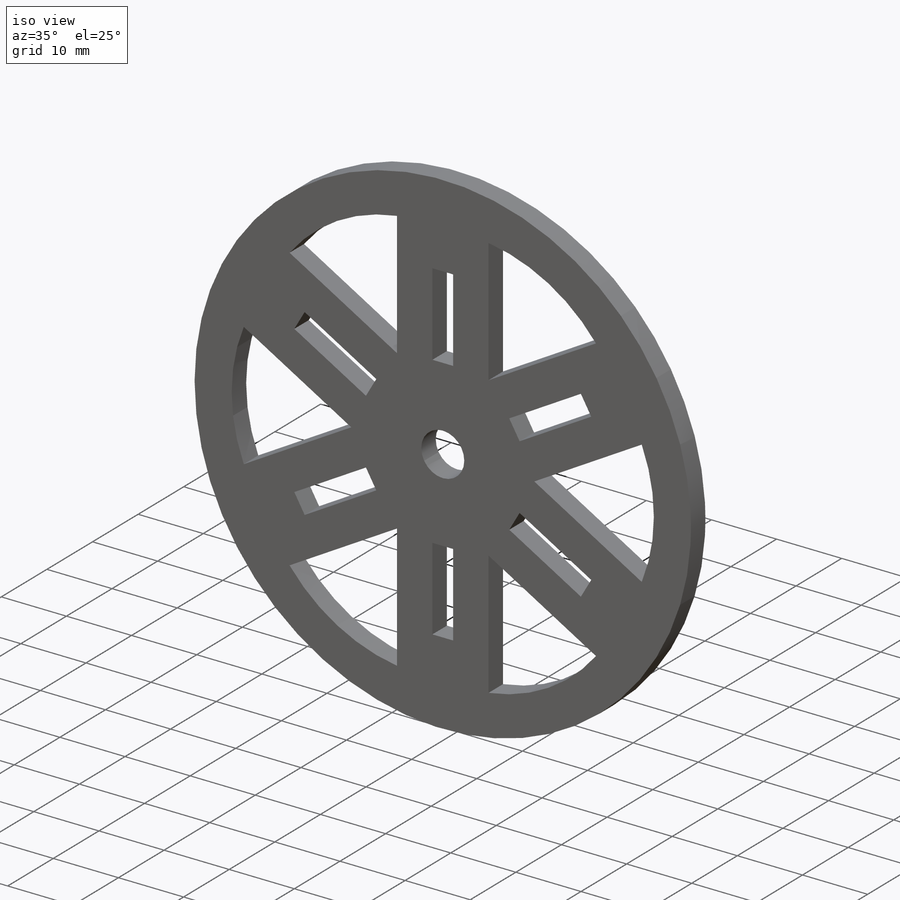
[diagram: iso view]
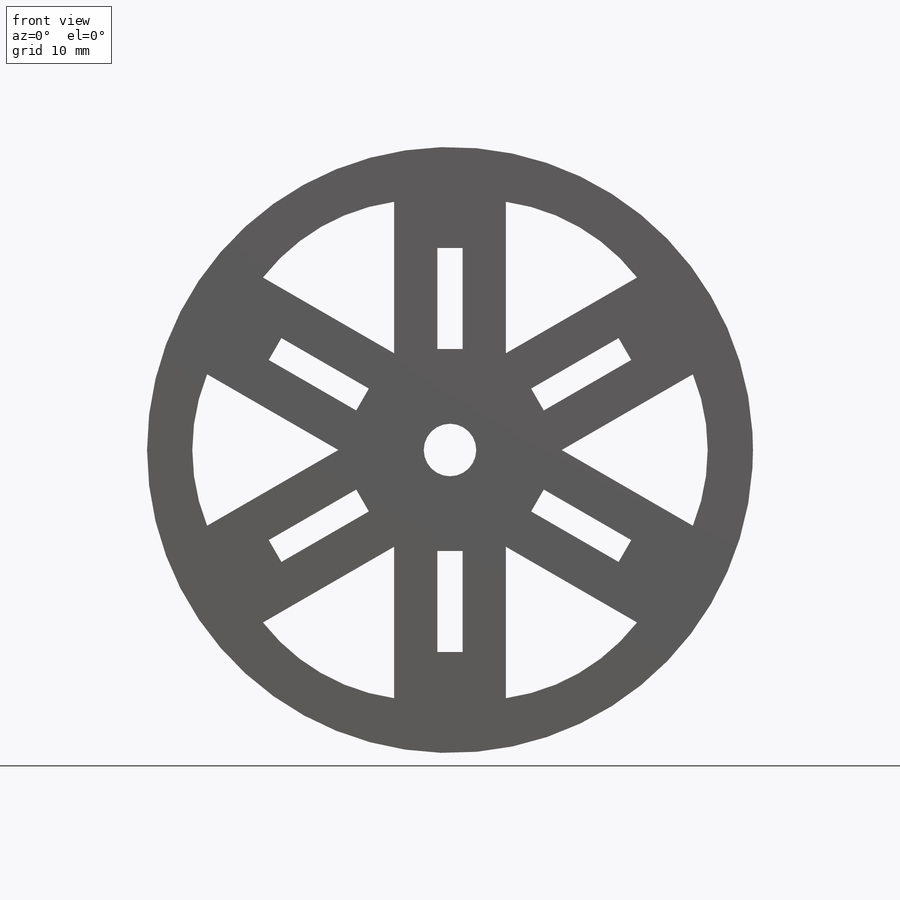
[diagram: front view]
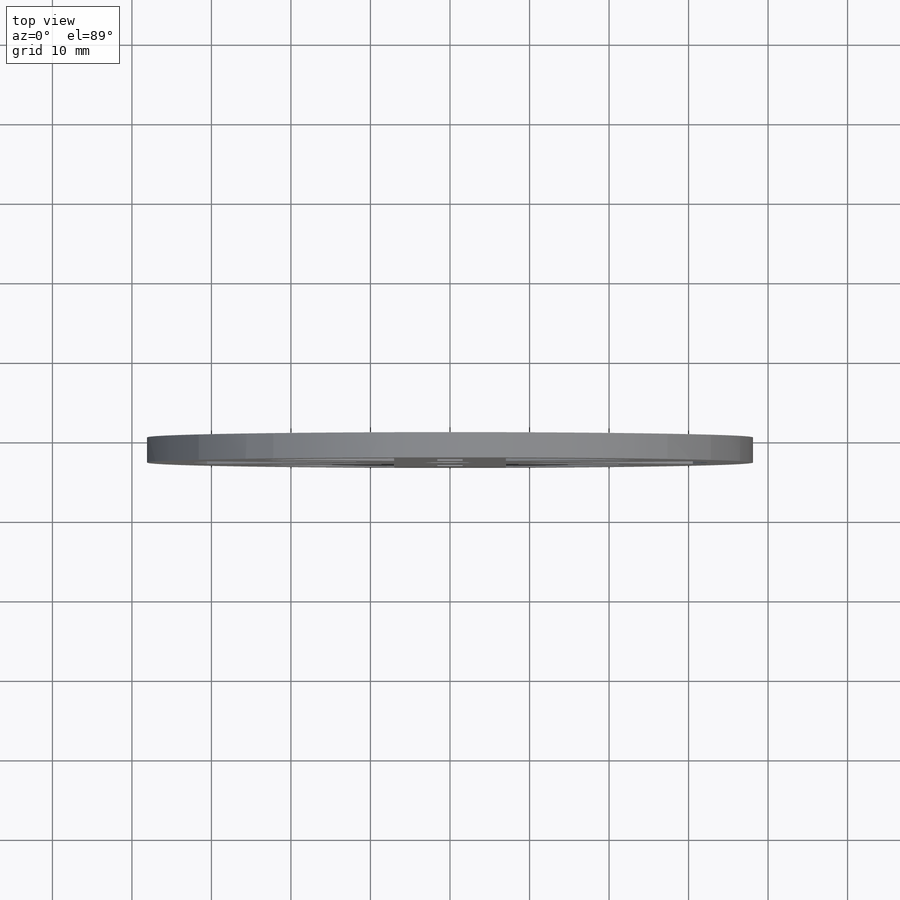
[diagram: top view]
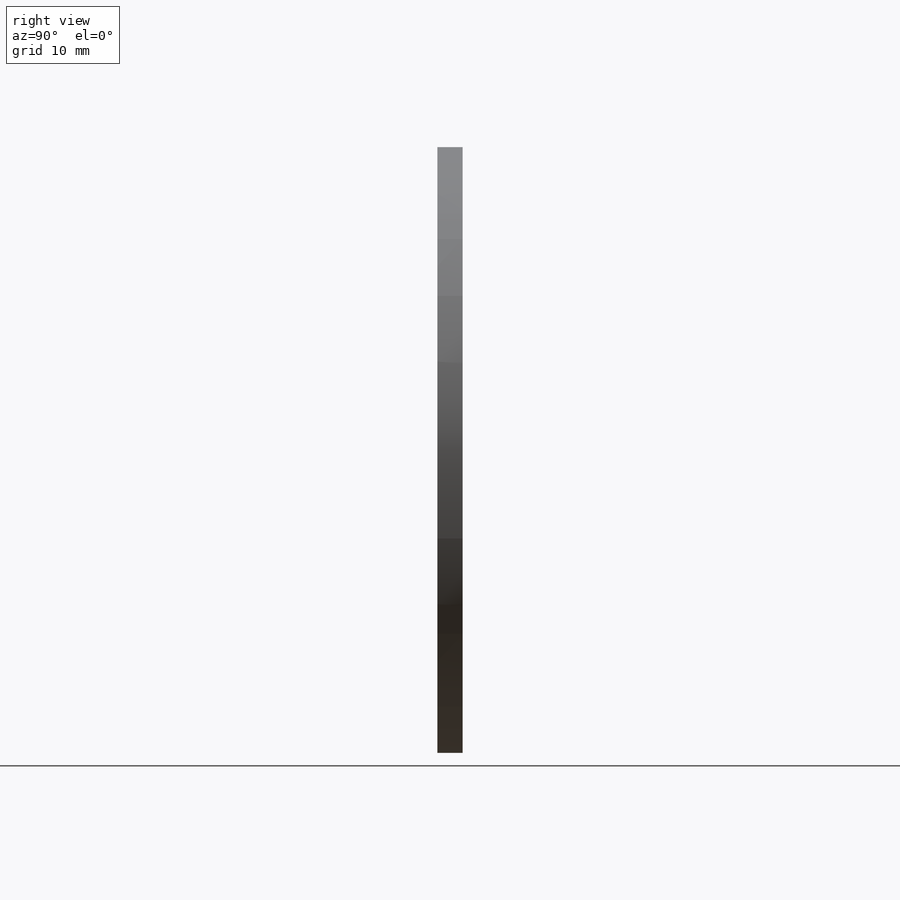
[diagram: right view]
SOLIDWORKS PART (.sldprt)
format: sldprt  version: not decoded by parser v0  size: 544,768 bytes
history: native  units: mm
features: sketch x5, cut_extrude x4, material x1, extrude x1 (+11 scaffold rows collapsed)
feature tree (22):
  scaffold x11  (default folders/planes/origin — collapsed)
  material  "Material <not specified>"
  sketch  "Sketch1"  dims[D1=76.2mm]
  extrude  "Extrude1"  Depth=3.175mm
  sketch  "Sketch2"  dims[D1=~8.059081mm]
  cut_extrude  "Cut-Extrude1"  [1 undecoded]
  sketch  "Sketch3"  dims[c1.D1=~21.298676mm c1.D3=50.8mm c1.D4=25.4mm c2.D1=76.2mm c3.D1=~43.514647deg c4.D1=~66.17963mm c5.D1=60.0deg c5.D2=~76.199059mm c6.D2=60.0deg c6.D3=76.2mm c7.D3=60.0deg c8.D3=~74.947457mm c8.D2=76.2mm c9.D2=60.0deg c9.D3=~76.173476mm c10.D2=~76.199059mm c10.D1=76.2mm c11.D1=60.0deg c11.D2=~72.717633mm c12.D1=~65.991136mm c13.D1=60.0deg c13.D2=76.2mm c14.D2=60.0deg c14.D3=~65.991136mm c15.D3=60.0deg c16.D3=38.1mm c16.D4=6.35mm c16.D5=1.5875mm c16.D6=19.05mm]
  cut_extrude  "Cut-Extrude2"  [1 undecoded]
  sketch  "Sketch4"  dims[c1.D2=19.05mm c1.D3=35.56mm c1.D5=68.58mm c2.D2=~17.983297mm c2.D1=~41.848138mm c3.D1=30.0deg c3.D2=~32.995568mm c3.D3=~24.016629mm c4.D3=45.0deg c4.D4=~24.016629mm c5.D4=22.5deg c5.D5=25.4mm c5.D6=25.4mm c5.D3=~25.203815mm c6.D3=~47.551528deg c7.D3=12.7mm c7.D4=12.7mm c7.D6=~25.212308mm c8.D6=45.0deg c8.D7=12.7mm c8.D1=~47.499806mm c9.D1=30.0deg c9.D2=19.05mm c9.D3=19.05mm c9.D4=12.7mm c10.D4=30.0deg c11.D4=12.7mm c12.D4=60.0deg c12.D5=50.0mm c13.D5=30.0deg]
  cut_extrude  "Cut-Extrude3"  [1 undecoded]
  sketch  "Sketch5"  dims[D1=~9.016193mm]
  cut_extrude  "Cut-Extrude4"  [1 undecoded]
decode coverage: 6 of 10 modeling features carry decoded parameters
note: ~ marks probable driven/reference dimensions
note: 4 parameter values undecoded
summary: no parameter record found for 4 features
note: suppression state not decoded; provenance and decode notes live in map.json
